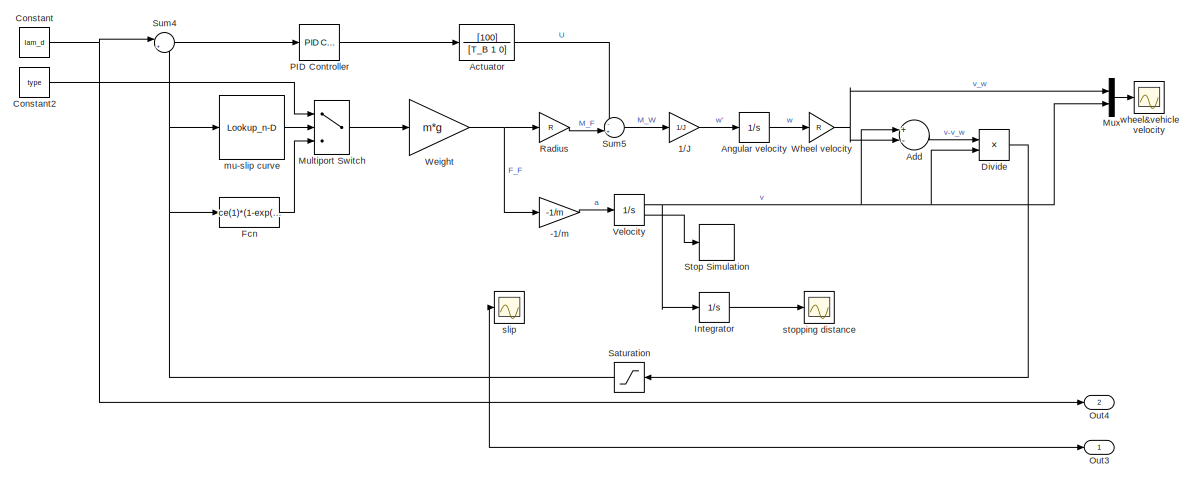
[diagram: root canvas - part 1/2, middle left region]
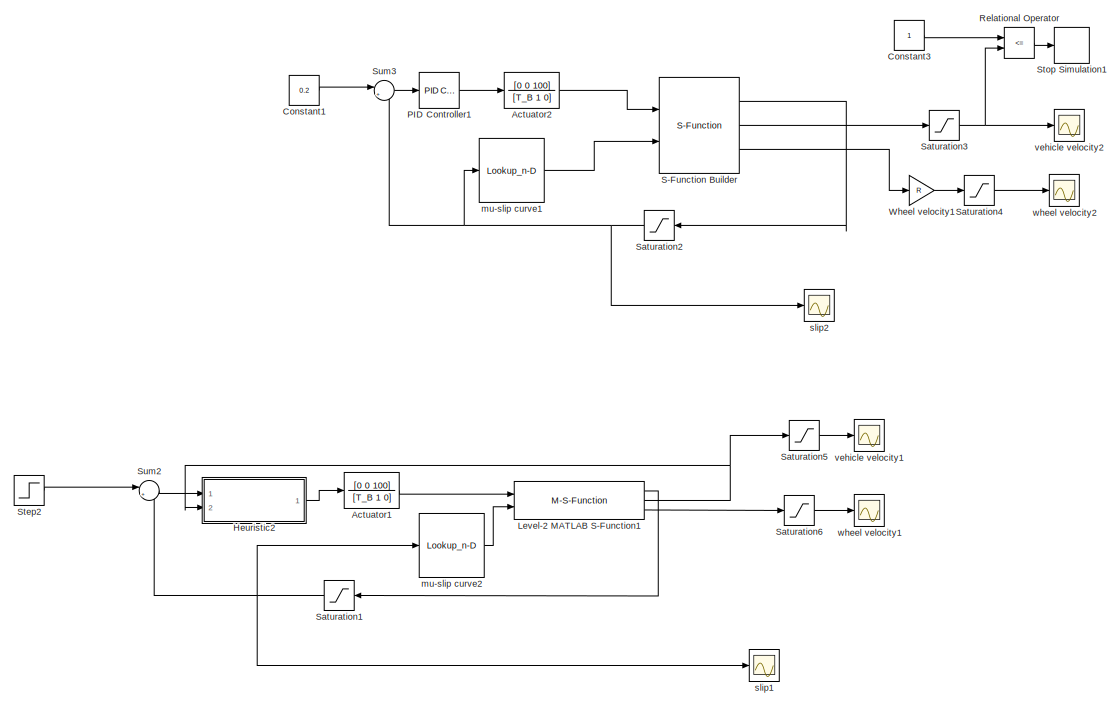
[diagram: root canvas - part 2/2, right side, full height]
MODEL slx_0207c26ddbc8
KIND model
CONFIG AbsTol = auto
CONFIG EnableMultiTasking = off
CONFIG FixedStep = auto
CONFIG InitFcn = J = 1.13;\ng = 9.81;\nT_B = 0.1;
CONFIG MaxStep = auto
CONFIG MinStep = auto
CONFIG RelTol = 1e-3
CONFIG SampleTimeConstraint = Unconstrained
CONFIG Solver = VariableStepAuto
CONFIG SolverName = VariableStepAuto
CONFIG StartTime = 0.0
CONFIG StopTime = 10.0
BLOCK [Gain] -1//m
  Gain = -1/m
  OutDataTypeStr = Inherit: Inherit via internal rule
  ParamDataTypeStr = Inherit: Inherit via internal rule
  SaturateOnIntegerOverflow = off
BLOCK [Gain] 1//J
  Gain = 1/J
  OutDataTypeStr = Inherit: Inherit via internal rule
  ParamDataTypeStr = Inherit: Inherit via internal rule
  SaturateOnIntegerOverflow = off
BLOCK [TransferFcn] Actuator
  Denominator = [T_B 1 0]
  Numerator = [100]
BLOCK [TransferFcn] Actuator1
  Commented = on
  Denominator = [T_B 1 0]
  Numerator = [0 0 100]
BLOCK [TransferFcn] Actuator2
  Commented = on
  Denominator = [T_B 1 0]
  Numerator = [0 0 100]
BLOCK [Sum] Add
  InputSameDT = off
  Inputs = +-
  OutDataTypeStr = Inherit: Inherit via internal rule
  Ports = [2, 1]
  SaturateOnIntegerOverflow = off
BLOCK [Integrator] Angular velocity
  InitialCondition = v_x/R
  LimitOutput = on
  LowerSaturationLimit = 0
  Ports = [1, 1]
  UpperSaturationLimit = 1000
BLOCK [Constant] Constant
  Value = lam_d
BLOCK [Constant] Constant1
  Commented = on
  Value = 0.2
BLOCK [Constant] Constant2
  Value = type
BLOCK [Constant] Constant3
  Commented = on
BLOCK [Product] Divide
  InputSameDT = off
  Inputs = */
  OutDataTypeStr = Inherit: Inherit via internal rule
  Ports = [2, 1]
  RndMeth = Floor
  SaturateOnIntegerOverflow = off
BLOCK [Fcn] Fcn
  Expr = ce(1)*(1-exp(-ce(2)*u))-ce(3)*u
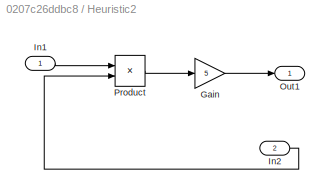
BLOCK [SubSystem] Heuristic2
  Commented = on
  Ports = [2, 1]
  RequestExecContextInheritance = off
  Variant = off
BLOCK [Gain] Heuristic2/Gain
  Gain = 5
  OutDataTypeStr = Inherit: Inherit via internal rule
  ParamDataTypeStr = Inherit: Inherit via internal rule
  SaturateOnIntegerOverflow = off
BLOCK [Inport] Heuristic2/In1
  IconDisplay = Port number
BLOCK [Inport] Heuristic2/In2
  IconDisplay = Port number
  Port = 2
BLOCK [Outport] Heuristic2/Out1
  IconDisplay = Port number
BLOCK [Product] Heuristic2/Product
  InputSameDT = off
  OutDataTypeStr = Inherit: Inherit via internal rule
  Ports = [2, 1]
  RndMeth = Floor
  SaturateOnIntegerOverflow = off
BLOCK [Integrator] Integrator
  Ports = [1, 1]
BLOCK [M-S-Function] Level-2 MATLAB S-Function1
  Commented = on
  FunctionName = ABS_sfun
  Parameters = 27.78, 84.18, 0
  Ports = [2, 3]
BLOCK [MultiPortSwitch] Multiport Switch
  InputSameDT = off
  Inputs = 2
  Ports = [3, 1]
  SaturateOnIntegerOverflow = off
BLOCK [Mux] Mux
  DisplayOption = bar
  Inputs = 2
  Ports = [2, 1]
BLOCK [Outport] Out3
  IconDisplay = Port number
BLOCK [Outport] Out4
  IconDisplay = Port number
  Port = 2
BLOCK [Reference] PID Controller  REF=simulink/Continuous/PID Controller
  Ports = [1, 1]
  SourceBlock = simulink/Continuous/PID Controller
  SourceProductBaseCode = SL
  SourceProductName = Simulink
  SourceType = PID 1dof
BLOCK [Reference] PID Controller1  REF=simulink/Continuous/PID Controller
  Commented = on
  Ports = [1, 1]
  SourceBlock = simulink/Continuous/PID Controller
  SourceProductBaseCode = SL
  SourceProductName = Simulink
  SourceType = PID 1dof
BLOCK [Gain] Radius
  Gain = R
  OutDataTypeStr = Inherit: Inherit via internal rule
  ParamDataTypeStr = Inherit: Inherit via internal rule
  SaturateOnIntegerOverflow = off
BLOCK [RelationalOperator] Relational Operator
  Commented = on
  InputSameDT = off
  Operator = <=
  OutDataTypeStr = boolean
  Ports = [2, 1]
  RndMeth = Simplest
BLOCK [S-Function] S-Function Builder
  Commented = on
  CopyFcn = set_param(gcbh,'LinkStatus','none')
  EnableBusSupport = off
  FunctionName = ABS_s
  InitFcn = try, set_param(gcb,'FunctionName','ABS_s'), end
  OpenFcn = sfunctionwizard(gcbh)
  Parameters = 342,0.33,1.13,27.78,9.81,1.281,23.99,0.520
  Ports = [2, 3]
  PreSaveFcn = try, set_param(gcb,'FunctionName','ABS_s'), end
  SFcnIsStateOwnerBlock = off
  SFunctionDeploymentMode = off
  SFunctionModules = ABS_s_wrapper
BLOCK [Saturate] Saturation
  InputPortMap = u0
  LowerLimit = 0
  Ports = [1, 1]
  UpperLimit = 1
BLOCK [Saturate] Saturation1
  Commented = on
  InputPortMap = u0
  LowerLimit = 0
  Ports = [1, 1]
  UpperLimit = 1
BLOCK [Saturate] Saturation2
  Commented = on
  InputPortMap = u0
  LowerLimit = 0
  Ports = [1, 1]
  UpperLimit = 1
BLOCK [Saturate] Saturation3
  Commented = on
  InputPortMap = u0
  LowerLimit = 0
  Ports = [1, 1]
  UpperLimit = inf
BLOCK [Saturate] Saturation4
  Commented = on
  InputPortMap = u0
  LowerLimit = 0
  Ports = [1, 1]
  UpperLimit = inf
BLOCK [Saturate] Saturation5
  Commented = on
  InputPortMap = u0
  LowerLimit = 0
  Ports = [1, 1]
  UpperLimit = inf
BLOCK [Saturate] Saturation6
  Commented = on
  InputPortMap = u0
  LowerLimit = 0
  Ports = [1, 1]
  UpperLimit = inf
BLOCK [Step] Step2
  After = 0.2
  Commented = on
  SampleTime = 0
BLOCK [Stop] Stop Simulation
BLOCK [Stop] Stop Simulation1
  Commented = on
BLOCK [Sum] Sum2
  Commented = on
  IconShape = round
  InputSameDT = off
  Inputs = |+-
  OutDataTypeStr = Inherit: Inherit via internal rule
  Ports = [2, 1]
  SaturateOnIntegerOverflow = off
BLOCK [Sum] Sum3
  Commented = on
  IconShape = round
  InputSameDT = off
  Inputs = |+-
  OutDataTypeStr = Inherit: Inherit via internal rule
  Ports = [2, 1]
  SaturateOnIntegerOverflow = off
BLOCK [Sum] Sum4
  IconShape = round
  InputSameDT = off
  Inputs = |+-
  OutDataTypeStr = Inherit: Inherit via internal rule
  Ports = [2, 1]
  SaturateOnIntegerOverflow = off
BLOCK [Sum] Sum5
  IconShape = round
  InputSameDT = off
  Inputs = -+|
  OutDataTypeStr = Inherit: Inherit via internal rule
  Ports = [2, 1]
  SaturateOnIntegerOverflow = off
BLOCK [Integrator] Velocity
  InitialCondition = v_x
  LimitOutput = on
  LowerSaturationLimit = 1
  Ports = [1, 2]
  ShowSaturationPort = on
  UpperSaturationLimit = 1000
BLOCK [Gain] Weight
  Gain = m*g
  OutDataTypeStr = Inherit: Inherit via internal rule
  ParamDataTypeStr = Inherit: Inherit via internal rule
  SaturateOnIntegerOverflow = off
BLOCK [Gain] Wheel velocity
  Gain = R
  OutDataTypeStr = Inherit: Inherit via internal rule
  ParamDataTypeStr = Inherit: Inherit via internal rule
  SaturateOnIntegerOverflow = off
BLOCK [Gain] Wheel velocity1
  Commented = on
  Gain = R
  OutDataTypeStr = Inherit: Inherit via internal rule
  ParamDataTypeStr = Inherit: Inherit via internal rule
  SaturateOnIntegerOverflow = off
BLOCK [Lookup_n-D] mu-slip curve
  BreakpointsForDimension1 = [-5:5]
  BreakpointsForDimension1FirstPoint = 0
  BreakpointsForDimension1Spacing = 0.05
  BreakpointsSpecification = Even spacing
  InternalRulePriority = Speed
  NumberOfTableDimensions = 1
  Ports = [1, 1]
  RndMeth = Simplest
  Table = [0,0.4,0.8,0.97,1,0.98,0.96,0.94,0.92,0.9,0.88,0.855,0.83,0.81,0.79,0.77,0.75,0.73,0.72,0.71,0.7]
BLOCK [Lookup_n-D] mu-slip curve1
  BreakpointsForDimension1 = [-5:5]
  BreakpointsForDimension1FirstPoint = 0
  BreakpointsForDimension1Spacing = 0.05
  BreakpointsSpecification = Even spacing
  Commented = on
  InternalRulePriority = Speed
  NumberOfTableDimensions = 1
  Ports = [1, 1]
  RndMeth = Simplest
  Table = [0,0.4,0.8,0.97,1,0.98,0.96,0.94,0.92,0.9,0.88,0.855,0.83,0.81,0.79,0.77,0.75,0.73,0.72,0.71,0.7]
BLOCK [Lookup_n-D] mu-slip curve2
  BreakpointsForDimension1 = [-5:5]
  BreakpointsForDimension1FirstPoint = 0
  BreakpointsForDimension1Spacing = 0.05
  BreakpointsSpecification = Even spacing
  Commented = on
  InternalRulePriority = Speed
  NumberOfTableDimensions = 1
  Ports = [1, 1]
  RndMeth = Simplest
  Table = [0,0.4,0.8,0.97,1,0.98,0.96,0.94,0.92,0.9,0.88,0.855,0.83,0.81,0.79,0.77,0.75,0.73,0.72,0.71,0.7]
BLOCK [Scope] slip
  NumInputPorts = 1
  Ports = [1]
  ScopeSpecificationString = Simulink.scopes.TimeScopeBlockCfg('CurrentConfiguration', extmgr.ConfigurationSet(extmgr.Configuration('Core','General UI',true),extmgr.Configuration('Core','Source UI',true),extmgr.Configuration('Sources','WiredSimulink',true,'DataLoggingVariableName','slip_opt','DataLogging',true,'DataLoggingSaveFormat','StructureWithTime'),extmgr.Configuration('Visuals','Time Domain',true,'SerializedDisplays',{...<+1463ch>
BLOCK [Scope] slip1
  Commented = on
  NumInputPorts = 1
  Ports = [1]
  ScopeSpecificationString = Simulink.scopes.TimeScopeBlockCfg('CurrentConfiguration', extmgr.ConfigurationSet(extmgr.Configuration('Core','General UI',true),extmgr.Configuration('Core','Source UI',true),extmgr.Configuration('Sources','WiredSimulink',true,'DataLoggingVariableName','ScopeData5'),extmgr.Configuration('Visuals','Time Domain',true,'SerializedDisplays',{struct('MinYLimReal','-0.125','MaxYLimReal','1.125','YLabelRe...<+1358ch>
BLOCK [Scope] slip2
  Commented = on
  NumInputPorts = 1
  Ports = [1]
  ScopeSpecificationString = Simulink.scopes.TimeScopeBlockCfg('CurrentConfiguration', extmgr.ConfigurationSet(extmgr.Configuration('Core','General UI',true),extmgr.Configuration('Core','Source UI',true),extmgr.Configuration('Sources','WiredSimulink',true,'DataLoggingVariableName','ScopeData8'),extmgr.Configuration('Visuals','Time Domain',true,'SerializedDisplays',{struct('MinYLimReal','-0.125','MaxYLimReal','1.125','YLabelRe...<+1389ch>
BLOCK [Scope] stopping distance
  NumInputPorts = 1
  Ports = [1]
  ScopeSpecificationString = Simulink.scopes.TimeScopeBlockCfg('CurrentConfiguration', extmgr.ConfigurationSet(extmgr.Configuration('Core','General UI',true),extmgr.Configuration('Core','Source UI',true),extmgr.Configuration('Sources','WiredSimulink',true,'DataLoggingVariableName','stopping_dist_opt','DataLogging',true,'DataLoggingSaveFormat','StructureWithTime'),extmgr.Configuration('Visuals','Time Domain',true,'SerializedDi...<+1443ch>
BLOCK [Scope] vehicle velocity1
  Commented = on
  NumInputPorts = 1
  Ports = [1]
  ScopeSpecificationString = Simulink.scopes.TimeScopeBlockCfg('CurrentConfiguration', extmgr.ConfigurationSet(extmgr.Configuration('Core','General UI',true),extmgr.Configuration('Core','Source UI',true),extmgr.Configuration('Sources','WiredSimulink',true,'DataLoggingVariableName','ScopeData10'),extmgr.Configuration('Visuals','Time Domain',true,'SerializedDisplays',{struct('MinYLimReal','7.26301','MaxYLimReal','30.05967','YLa...<+1373ch>
BLOCK [Scope] vehicle velocity2
  Commented = on
  NumInputPorts = 1
  Ports = [1]
  ScopeSpecificationString = Simulink.scopes.TimeScopeBlockCfg('CurrentConfiguration', extmgr.ConfigurationSet(extmgr.Configuration('Core','General UI',true),extmgr.Configuration('Core','Source UI',true),extmgr.Configuration('Sources','WiredSimulink',true,'DataLoggingVariableName','ScopeData11'),extmgr.Configuration('Visuals','Time Domain',true,'SerializedDisplays',{struct('MinYLimReal','-3.4725','MaxYLimReal','31.2525','YLab...<+1402ch>
BLOCK [Scope] wheel velocity1
  Commented = on
  NumInputPorts = 1
  Ports = [1]
  ScopeSpecificationString = Simulink.scopes.TimeScopeBlockCfg('CurrentConfiguration', extmgr.ConfigurationSet(extmgr.Configuration('Core','General UI',true),extmgr.Configuration('Core','Source UI',true),extmgr.Configuration('Sources','WiredSimulink',true,'DataLoggingVariableName','ScopeData12'),extmgr.Configuration('Visuals','Time Domain',true,'SerializedDisplays',{struct('MinYLimReal','-10.52302','MaxYLimReal','94.70719','Y...<+1377ch>
BLOCK [Scope] wheel velocity2
  Commented = on
  NumInputPorts = 1
  Ports = [1]
  ScopeSpecificationString = Simulink.scopes.TimeScopeBlockCfg('CurrentConfiguration', extmgr.ConfigurationSet(extmgr.Configuration('Core','General UI',true),extmgr.Configuration('Core','Source UI',true),extmgr.Configuration('Sources','WiredSimulink',true),extmgr.Configuration('Visuals','Time Domain',true,'SerializedDisplays',{struct('MinYLimReal','-3.47243','MaxYLimReal','31.25183','YLabelReal','','MinYLimMag','0.00000','Max...<+1366ch>
BLOCK [Scope] wheel&vehicle velocity
  NumInputPorts = 1
  Ports = [1]
  ScopeSpecificationString = Simulink.scopes.TimeScopeBlockCfg('CurrentConfiguration', extmgr.ConfigurationSet(extmgr.Configuration('Core','General UI',true),extmgr.Configuration('Core','Source UI',true),extmgr.Configuration('Sources','WiredSimulink',true,'DataLoggingVariableName','velocities_opt','DataLogging',true,'DataLoggingSaveFormat','StructureWithTime'),extmgr.Configuration('Visuals','Time Domain',true,'SerializedDispl...<+1437ch>
LINE -1//m:1 -> Velocity:1
LINE 1//J:1 -> Angular velocity:1
LINE Actuator1:1 -> Level-2 MATLAB S-Function1:1
LINE Actuator2:1 -> S-Function Builder:1
LINE Actuator:1 -> Sum5:1
LINE Add:1 -> Divide:1
LINE Angular velocity:1 -> Wheel velocity:1
LINE Constant1:1 -> Sum3:1
LINE Constant2:1 -> Multiport Switch:1
LINE Constant3:1 -> Relational Operator:1
NET Constant:1 -> Out4:1, Sum4:1
LINE Divide:1 -> Saturation:1
LINE Fcn:1 -> Multiport Switch:3
LINE Heuristic2/Gain:1 -> Heuristic2/Out1:1
LINE Heuristic2/In1:1 -> Heuristic2/Product:1
LINE Heuristic2/In2:1 -> Heuristic2/Product:2
LINE Heuristic2/Product:1 -> Heuristic2/Gain:1
LINE Heuristic2:1 -> Actuator1:1
LINE Integrator:1 -> stopping distance:1
LINE Level-2 MATLAB S-Function1:1 -> Saturation1:1
NET Level-2 MATLAB S-Function1:2 -> Heuristic2:2, Saturation5:1
LINE Level-2 MATLAB S-Function1:3 -> Saturation6:1
LINE Multiport Switch:1 -> Weight:1
LINE Mux:1 -> wheel&vehicle velocity:1
LINE PID Controller1:1 -> Actuator2:1
LINE PID Controller:1 -> Actuator:1
LINE Radius:1 -> Sum5:2
LINE Relational Operator:1 -> Stop Simulation1:1
LINE S-Function Builder:1 -> Saturation2:1
LINE S-Function Builder:2 -> Saturation3:1
LINE S-Function Builder:3 -> Wheel velocity1:1
NET Saturation1:1 -> Sum2:2, mu-slip curve2:1, slip1:1
NET Saturation2:1 -> Sum3:2, mu-slip curve1:1, slip2:1
NET Saturation3:1 -> Relational Operator:2, vehicle velocity2:1
LINE Saturation4:1 -> wheel velocity2:1
LINE Saturation5:1 -> vehicle velocity1:1
LINE Saturation6:1 -> wheel velocity1:1
NET Saturation:1 -> Fcn:1, Out3:1, Sum4:2, mu-slip curve:1, slip:1
LINE Step2:1 -> Sum2:1
LINE Sum2:1 -> Heuristic2:1
LINE Sum3:1 -> PID Controller1:1
LINE Sum4:1 -> PID Controller:1
LINE Sum5:1 -> 1//J:1
NET Velocity:1 -> Add:1, Divide:2, Integrator:1, Mux:2
LINE Velocity:2 -> Stop Simulation:1
NET Weight:1 -> -1//m:1, Radius:1
LINE Wheel velocity1:1 -> Saturation4:1
NET Wheel velocity:1 -> Add:2, Mux:1
LINE mu-slip curve1:1 -> S-Function Builder:2
LINE mu-slip curve2:1 -> Level-2 MATLAB S-Function1:2
LINE mu-slip curve:1 -> Multiport Switch:2
note: NET lines group one-source signal fan-out (src -> all destinations, sorted); 1:1 wires keep LINE
